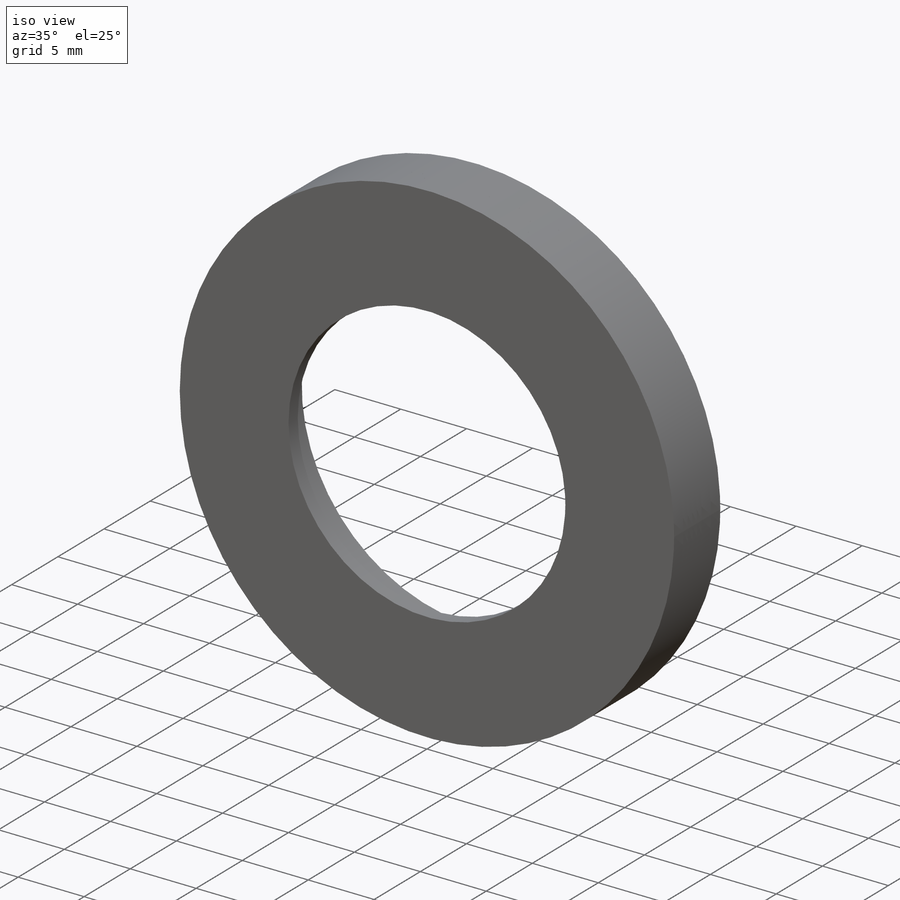
[diagram: iso view]
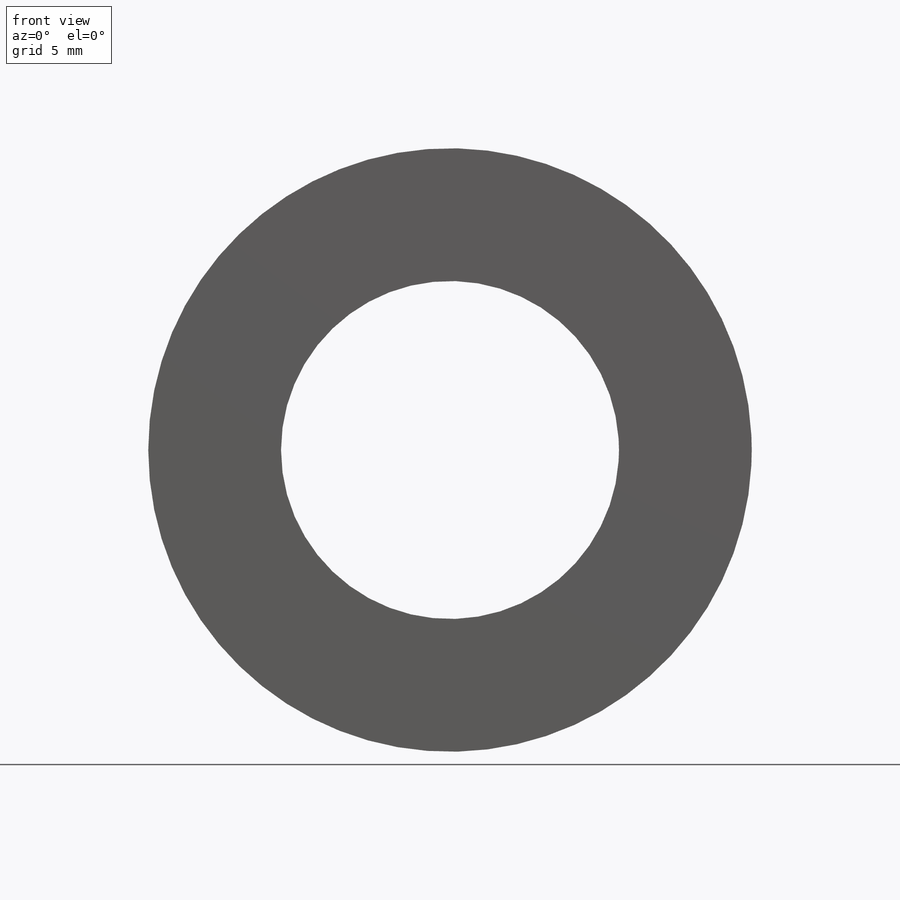
[diagram: front view]
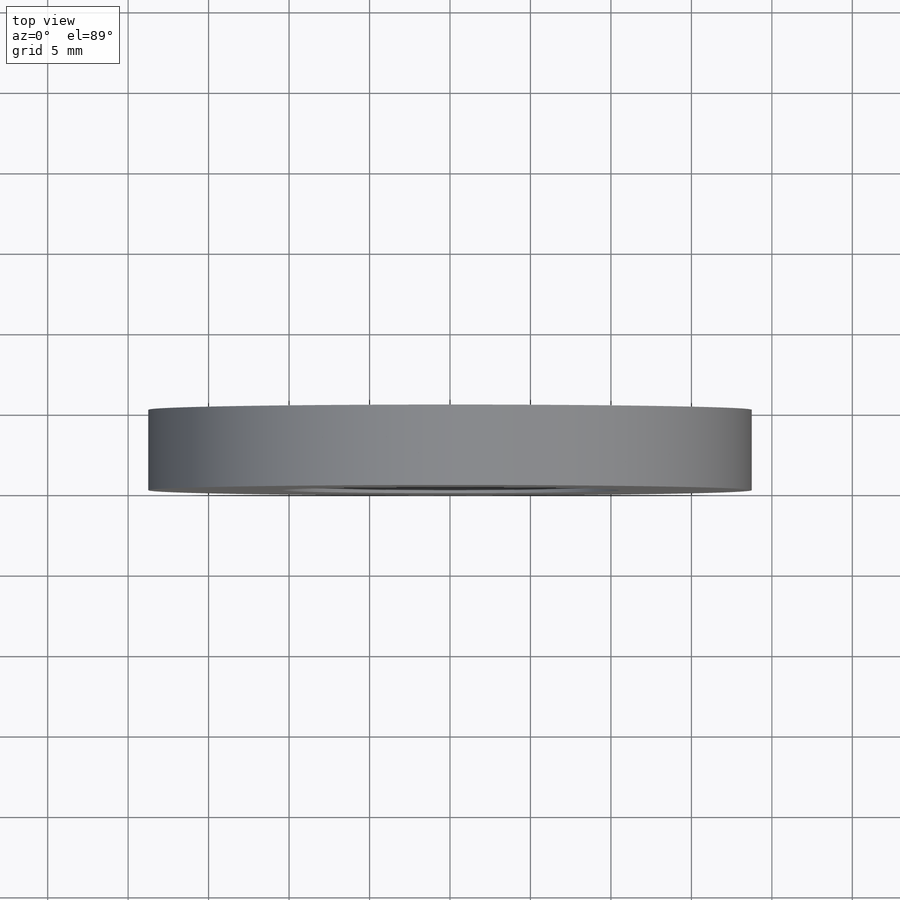
[diagram: top view]
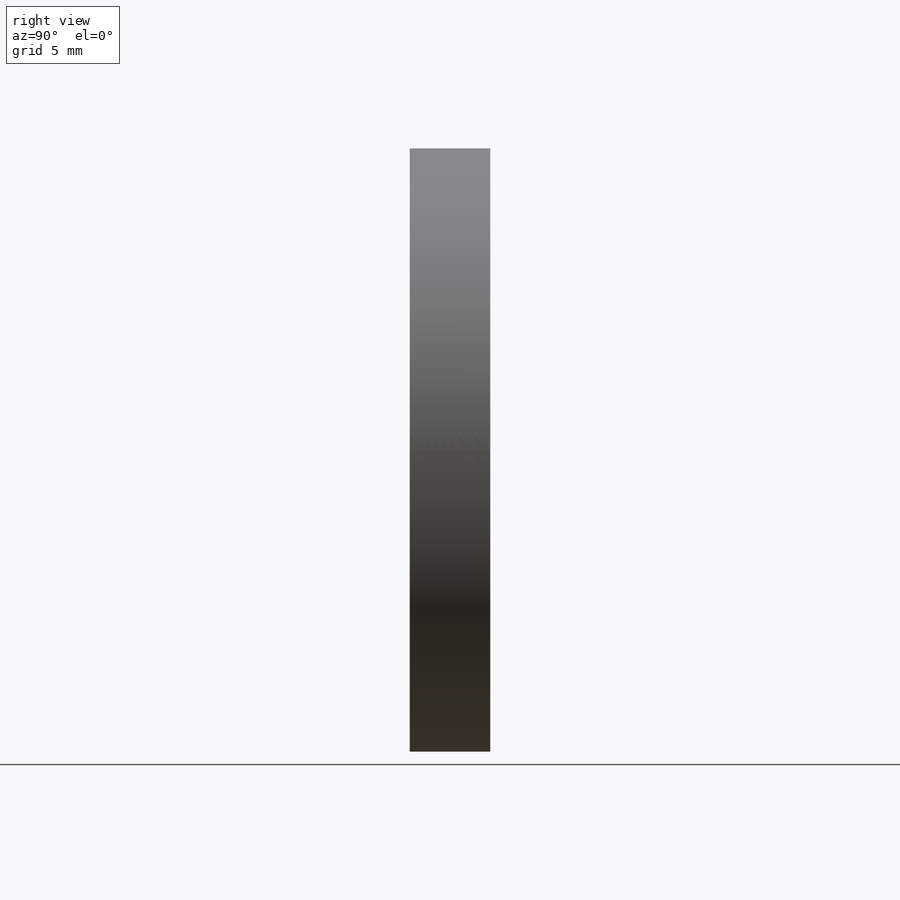
[diagram: right view]
SOLIDWORKS PART (.sldprt)
format: sldprt  version: not decoded by parser v0  size: 175,616 bytes
history: native  units: mm
features: material x4, sketch x3, extrude x2, plane x1 + 1 further entry (+10 scaffold rows collapsed)
feature tree (21):
  scaffold x10  (default folders/planes/origin — collapsed)
  material  "Ст 3 ГОСТ 380-2005"
  material  "PTricksFreeParameters"
  material  "PTricksEqu"
  material  "PTricksFreeParameters"
  plane  "Спереди"
  "Начало координат"
  sketch  "Эскиз1"  dims[c1.D1=26.0mm c1.D4=37.5mm c1.D5=50.0mm c1.D2=9.0mm c1.D3=16.5mm c2.D5=~1.647369mm]
  extrude  "Вытянуть1"  Depth=4mm
  sketch  "Эскиз2"  dims[c1.D1=1.0mm c1.D2=1.0mm c1.D3=50.0mm c2.D3=~179.853419deg c3.D3=0.5mm c3.D4=0.5mm c3.D5=0.5mm]
  sketch  "Эскиз3"  dims[D1=21.0mm]
  extrude  "Вытянуть2"  Depth=1mm
decode coverage: 5 of 5 modeling features carry decoded parameters; 1 rows unclassified (native names shown)
note: ~ marks probable driven/reference dimensions
note: suppression state not decoded; provenance and decode notes live in map.json
